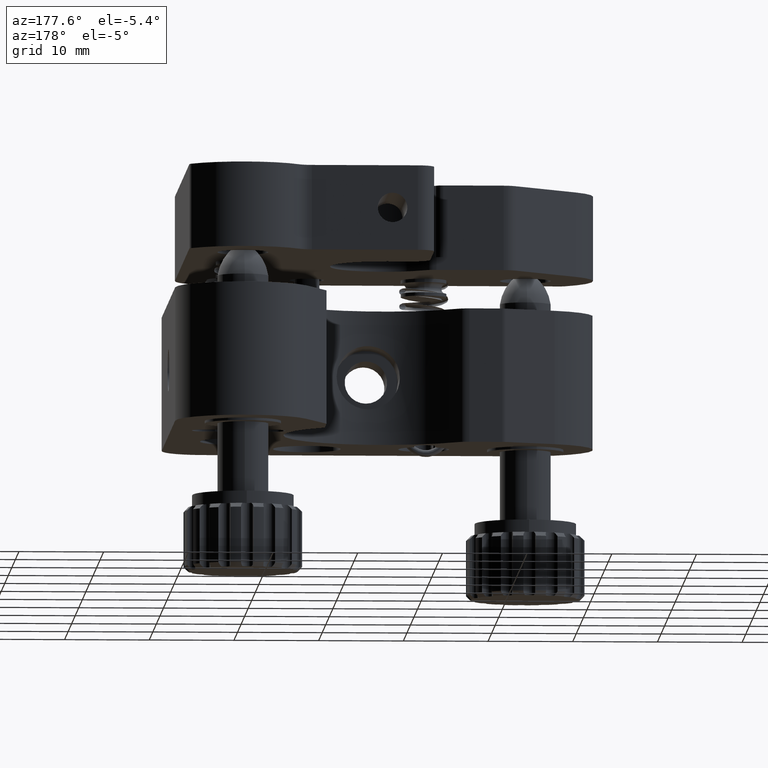
[diagram: clean part render]
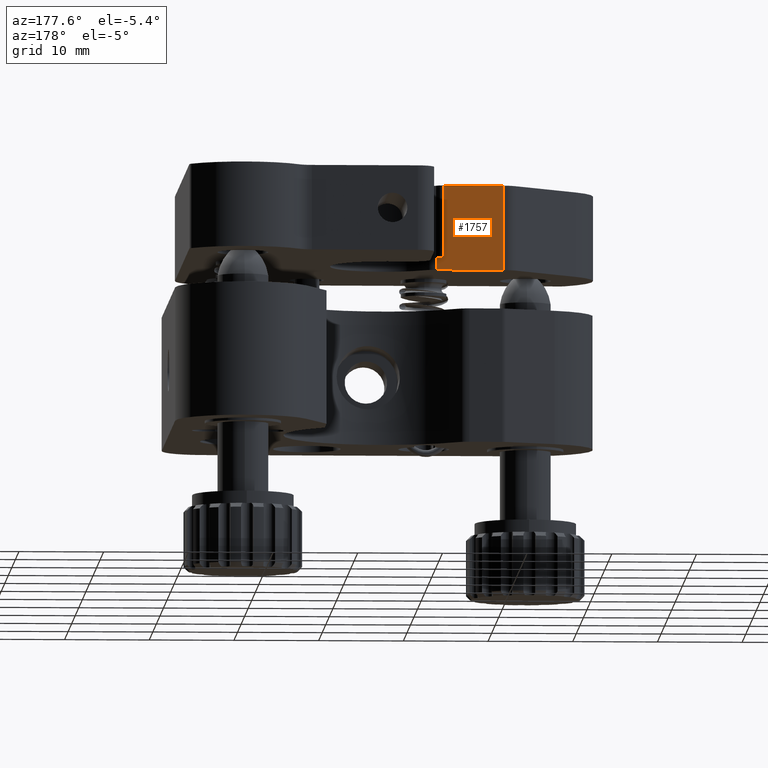
[diagram: same view with one face highlighted and labeled with its STEP entity id]
A machine part, auxiliary view. The second image highlights one B-rep face of the part: STEP entity #1757.
In plain terms, the highlighted planar face has unit normal (0, 1, -0).
Its self-contained STEP definition (entity closure, byte-faithful):
#612 = EDGE_CURVE ( 'NONE', #35994, #22361, #19965, .T. ) ;
#1757 = ADVANCED_FACE ( 'NONE', ( #9502 ), #33666, .T. ) ;
#3124 = DIRECTION ( 'NONE',  ( 0.0000000000000000000, 0.0000000000000000000, 1.000000000000000000 ) ) ;
#4273 = EDGE_CURVE ( 'NONE', #19916, #12505, #21600, .T. ) ;
#4527 = CARTESIAN_POINT ( 'NONE',  ( -32.54893608993583600, 21.74999999999999600, 30.00000000000000400 ) ) ;
#4655 = DIRECTION ( 'NONE',  ( -1.000000000000000000, 0.0000000000000000000, 0.0000000000000000000 ) ) ;
#4753 = CARTESIAN_POINT ( 'NONE',  ( -32.54893608993583600, 21.74999999999999600, 21.50000000000000000 ) ) ;
#5396 = LINE ( 'NONE', #10631, #35137 ) ;
#5628 = CARTESIAN_POINT ( 'NONE',  ( -31.75999201277446100, 21.74999999999999600, 20.00000000000000400 ) ) ;
#6000 = CARTESIAN_POINT ( 'NONE',  ( -32.54893608993583600, 21.74999999999999600, 20.00000000000000400 ) ) ;
#6705 = ORIENTED_EDGE ( 'NONE', *, *, #4273, .F. ) ;
#7452 = DIRECTION ( 'NONE',  ( -1.000000000000000000, 0.0000000000000000000, 0.0000000000000000000 ) ) ;
#7925 = VECTOR ( 'NONE', #3124, 1000.000000000000000 ) ;
#8592 = CARTESIAN_POINT ( 'NONE',  ( -39.66163660377710400, 21.74999999999999600, 20.00000000000000400 ) ) ;
#9074 = VERTEX_POINT ( 'NONE', #25746 ) ;
#9502 = FACE_OUTER_BOUND ( 'NONE', #29869, .T. ) ;
#10043 = EDGE_CURVE ( 'NONE', #9074, #12505, #16267, .T. ) ;
#10631 = CARTESIAN_POINT ( 'NONE',  ( -31.99519052838329000, 21.74999999999999600, 21.50000000000000000 ) ) ;
#11133 = ORIENTED_EDGE ( 'NONE', *, *, #21648, .F. ) ;
#11595 = LINE ( 'NONE', #24213, #33028 ) ;
#12505 = VERTEX_POINT ( 'NONE', #12779 ) ;
#12779 = CARTESIAN_POINT ( 'NONE',  ( -39.66163660377710400, 21.74999999999999600, 30.00000000000000400 ) ) ;
#13324 = VECTOR ( 'NONE', #4655, 1000.000000000000000 ) ;
#14273 = DIRECTION ( 'NONE',  ( 0.0000000000000000000, 1.000000000000000000, -0.0000000000000000000 ) ) ;
#16267 = LINE ( 'NONE', #8592, #7925 ) ;
#16954 = EDGE_CURVE ( 'NONE', #19916, #34868, #34249, .T. ) ;
#19041 = DIRECTION ( 'NONE',  ( -1.000000000000000000, -0.0000000000000000000, -0.0000000000000000000 ) ) ;
#19372 = VECTOR ( 'NONE', #25493, 1000.000000000000000 ) ;
#19916 = VERTEX_POINT ( 'NONE', #4527 ) ;
#19965 = LINE ( 'NONE', #5628, #27439 ) ;
#21600 = LINE ( 'NONE', #35335, #13324 ) ;
#21648 = EDGE_CURVE ( 'NONE', #22361, #34868, #5396, .T. ) ;
#22361 = VERTEX_POINT ( 'NONE', #25108 ) ;
#24213 = CARTESIAN_POINT ( 'NONE',  ( -31.75999201277446100, 21.74999999999999600, 20.00000000000000400 ) ) ;
#24220 = ORIENTED_EDGE ( 'NONE', *, *, #10043, .T. ) ;
#24917 = DIRECTION ( 'NONE',  ( 0.0000000000000000000, 0.0000000000000000000, 1.000000000000000000 ) ) ;
#25108 = CARTESIAN_POINT ( 'NONE',  ( -31.75999201277446100, 21.74999999999999600, 21.50000000000000000 ) ) ;
#25493 = DIRECTION ( 'NONE',  ( 0.0000000000000000000, -0.0000000000000000000, -1.000000000000000000 ) ) ;
#25746 = CARTESIAN_POINT ( 'NONE',  ( -39.66163660377710400, 21.74999999999999600, 20.00000000000000400 ) ) ;
#26384 = ORIENTED_EDGE ( 'NONE', *, *, #612, .F. ) ;
#26744 = CARTESIAN_POINT ( 'NONE',  ( -31.75999201277446100, 21.74999999999999600, 20.00000000000000400 ) ) ;
#27439 = VECTOR ( 'NONE', #24917, 1000.000000000000000 ) ;
#28487 = ORIENTED_EDGE ( 'NONE', *, *, #16954, .T. ) ;
#29869 = EDGE_LOOP ( 'NONE', ( #6705, #28487, #11133, #26384, #32972, #24220 ) ) ;
#30129 = AXIS2_PLACEMENT_3D ( 'NONE', #30983, #14273, #33777 ) ;
#30983 = CARTESIAN_POINT ( 'NONE',  ( -31.75999201277446100, 21.74999999999999600, 20.00000000000000400 ) ) ;
#32972 = ORIENTED_EDGE ( 'NONE', *, *, #36015, .T. ) ;
#33028 = VECTOR ( 'NONE', #7452, 1000.000000000000000 ) ;
#33666 = PLANE ( 'NONE',  #30129 ) ;
#33777 = DIRECTION ( 'NONE',  ( 0.0000000000000000000, 0.0000000000000000000, 1.000000000000000000 ) ) ;
#34249 = LINE ( 'NONE', #6000, #19372 ) ;
#34868 = VERTEX_POINT ( 'NONE', #4753 ) ;
#35137 = VECTOR ( 'NONE', #19041, 1000.000000000000000 ) ;
#35335 = CARTESIAN_POINT ( 'NONE',  ( -31.75999201277446100, 21.74999999999999600, 30.00000000000000400 ) ) ;
#35994 = VERTEX_POINT ( 'NONE', #26744 ) ;
#36015 = EDGE_CURVE ( 'NONE', #35994, #9074, #11595, .T. ) ;